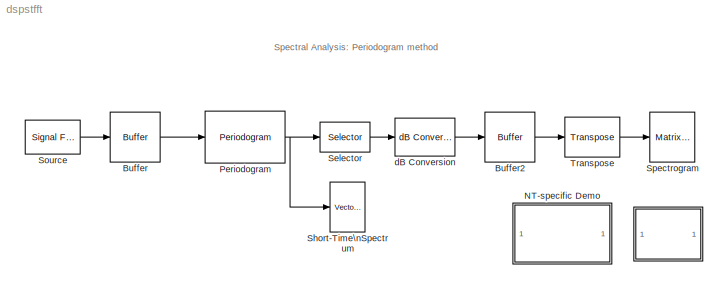
MODEL dspstfft
KIND model
CONFIG PreLoadFcn = load mtlb
BLOCK [SubSystem]  
  MaskDisplay = disp('Info')
  MaskIconFrame = on
  MaskIconOpaque = on
  MaskIconRotate = none
  MaskIconUnits = autoscale
  MaskType = info block for short-time FFT block.
  Ports = []
  TreatAsAtomicUnit = off
BLOCK [Reference] Buffer  REF=dspbuff3/Buffer
  N = 128
  Ports = [1, 1]
  SourceBlock = dspbuff3/Buffer
  SourceType = Buffer
  V = 48
  ic = 0
BLOCK [Reference] Buffer2  REF=dspbuff3/Buffer
  N = 48
  Ports = [1, 1]
  SourceBlock = dspbuff3/Buffer
  SourceType = Buffer
  V = 46
  ic = -70
BLOCK [SubSystem] NT-specific Demo
  MaskDisplay = disp('PC/Windows\\nDemo')
  MaskIconFrame = on
  MaskIconOpaque = on
  MaskIconRotate = none
  MaskIconUnits = autoscale
  MaskType = NT-only Demo
  OpenFcn = dspstfft_win32
  Ports = []
  TreatAsAtomicUnit = off
BLOCK [Reference] Periodogram  REF=dspspect3/Periodogram
  Ports = [1, 1]
  Rs = 50
  ShowPortLabels = on
  SourceBlock = dspspect3/Periodogram
  SourceType = Periodogram
  beta = 5
  fftsize = 128
  inheritFFT = on
  navg = 2
  winsamp = Periodic
  wintype = Hamming
BLOCK [Selector] Selector
  Elements = 1:64
  InputPortWidth = 128
  Ports = [1, 1]
BLOCK [Reference] Short-Time\nSpectrum  REF=dspsnks4/Vector\nScope
  AxisGrid = on
  AxisLegend = off
  AxisProperties = off
  AxisZoom = off
  DisplayProperties = off
  Domain = Frequency
  FigPos = [80 110 380 320]
  FrameNumber = off
  HorizSpan = 1
  InheritXIncr = on
  LineProperties = off
  Memory = off
  OpenScopeAtSimStart = on
  OpenScopeImmediately = off
  Ports = [1]
  ScopeProperties = on
  ShowPortLabels = off
  SourceBlock = dspsnks4/Vector\nScope
  SourceType = Vector Scope
  XIncr = 1
  XLabel = Samples
  XRange = [0...Fs/2]
  XUnits = Hertz
  YLabel = Magnitude, dB
  YMax = 9.71199466608513
  YMin = -59.7576717829863
  YUnits = dB
BLOCK [Reference] Source  REF=dspsrcs4/Signal From\nWorkspace
  OutputAfterFinalValue = Setting to zero
  Ports = [0, 1]
  ShowPortLabels = on
  SourceBlock = dspsrcs4/Signal From\nWorkspace
  SourceType = Signal From Workspace
  Ts = 1/8000
  X = mtlb
  nsamps = 80
BLOCK [Reference] Spectrogram  REF=dspsnks4/Matrix\nViewer
  AxisColorbar = on
  AxisOrigin = Lower left corner
  AxisParams = off
  AxisZoom = off
  CMapStr = jet(256)
  FigPos = [468 110 380 320]
  ImageParams = off
  Ports = [1]
  ShowPortLabels = off
  SourceBlock = dspsnks4/Matrix\nViewer
  SourceType = Matrix Viewer
  XLabel = Time Index
  YLabel = Frequency Index
  YMax = 15
  YMin = -70
  ZLabel = dB Magnitude
BLOCK [Reference] Transpose  REF=dspmtrx3/Transpose
  Hermitian = off
  Ports = [1, 1]
  SourceBlock = dspmtrx3/Transpose
  SourceType = Transpose
  overflowFlag = on
BLOCK [Reference] dB Conversion  REF=dspmathops/dB Conversion
  Ports = [1, 1]
  R = 1
  ShowPortLabels = on
  SourceBlock = dspmathops/dB Conversion
  SourceType = dB Conversion
  dBtype = dB
  fuzz = on
  intype = Amplitude
ANNOTATION (root): Spectral Analysis: Periodogram method
ANNOTATION  : Spectral Analysis: Periodogram method\n\nThis demo illustrates a spectal analysis method known as the periodogram.\n Periodogram computes the spectral content of a\nsignal over time, often for the case of a real-time input signal. The input signal is divided into \nbuffers of equal size, windowed, then an FFT is performed on each buffer of data. The \nspectrum thus obtained for the short segment o...<+37ch>
LINE Buffer2:1 -> Transpose:1
LINE Buffer:1 -> Periodogram:1
NET Periodogram:1 -> Selector:1, Short-Time\nSpectrum:1
LINE Selector:1 -> dB Conversion:1
LINE Source:1 -> Buffer:1
LINE Transpose:1 -> Spectrogram:1
LINE dB Conversion:1 -> Buffer2:1
note: NET lines group one-source signal fan-out (src -> all destinations, sorted); 1:1 wires keep LINE
